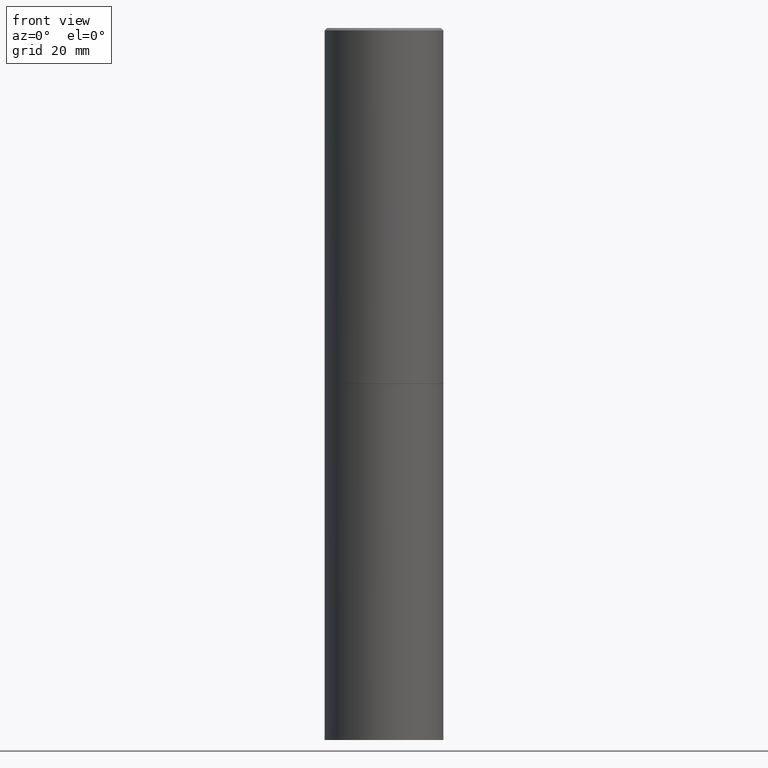
[diagram: clean part render]
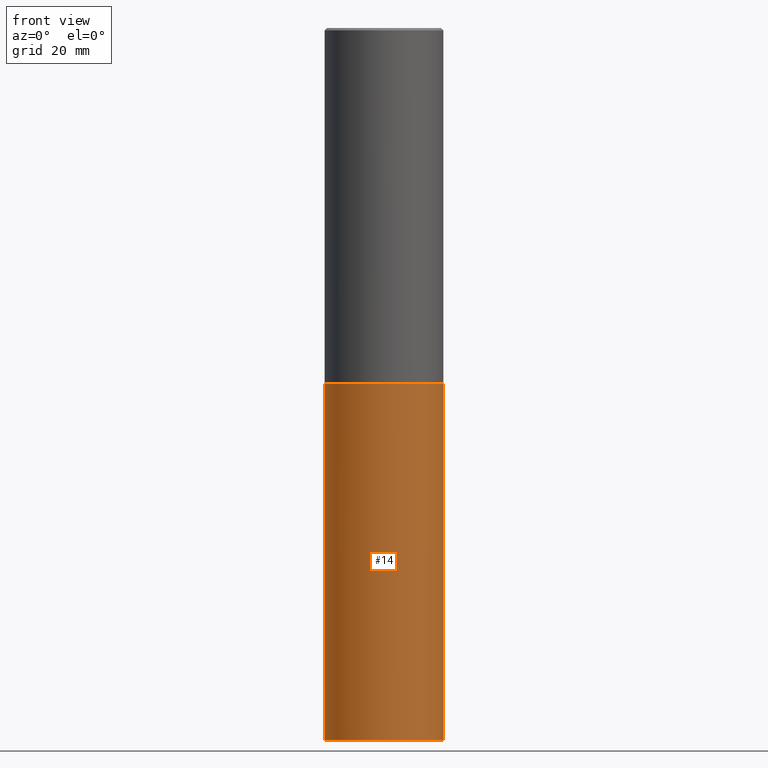
[diagram: same view with one face highlighted and labeled with its STEP entity id]
A machine part, front view. The second image highlights one B-rep face of the part: STEP entity #14.
In plain terms, the highlighted cylindrical surface (partial cylindrical patch) has radius 12.5006 mm, axis along (-0, 0, 1).
Its self-contained STEP definition (entity closure, byte-faithful):
#9 = CARTESIAN_POINT ( 'NONE',  ( 0.4921499999999999764, -1.374596203102545079E-14, -2.952700000000000102 ) ) ;
#14 = ADVANCED_FACE ( 'NONE', ( #87 ), #285, .T. ) ;
#21 = LINE ( 'NONE', #198, #239 ) ;
#31 = CIRCLE ( 'NONE', #231, 0.4921499999999999764 ) ;
#44 = CARTESIAN_POINT ( 'NONE',  ( -0.4921499999999999764, 3.496936074043332897E-15, -2.420853904668951509E-29 ) ) ;
#55 = VERTEX_POINT ( 'NONE', #151 ) ;
#62 = CARTESIAN_POINT ( 'NONE',  ( 1.444171603492632270E-28, -2.061894304653819197E-14, -5.905499999999999972 ) ) ;
#66 = DIRECTION ( 'NONE',  ( -2.445468806185136597E-29, 3.491481338843145583E-15, 1.000000000000000000 ) ) ;
#84 = ORIENTED_EDGE ( 'NONE', *, *, #284, .F. ) ;
#87 = FACE_OUTER_BOUND ( 'NONE', #221, .T. ) ;
#107 = VERTEX_POINT ( 'NONE', #340 ) ;
#120 = LINE ( 'NONE', #44, #310 ) ;
#133 = ORIENTED_EDGE ( 'NONE', *, *, #145, .T. ) ;
#140 = CIRCLE ( 'NONE', #324, 0.4921499999999999764 ) ;
#145 = EDGE_CURVE ( 'NONE', #55, #107, #140, .T. ) ;
#151 = CARTESIAN_POINT ( 'NONE',  ( -0.4921499999999999764, -1.196718392382684217E-14, -5.905499999999999972 ) ) ;
#158 = DIRECTION ( 'NONE',  ( 1.000000000000000000, -6.982962677686265922E-15, 0.000000000000000000 ) ) ;
#167 = ORIENTED_EDGE ( 'NONE', *, *, #242, .F. ) ;
#174 = DIRECTION ( 'NONE',  ( -2.445468806185136597E-29, 3.491481338843145583E-15, 1.000000000000000000 ) ) ;
#198 = CARTESIAN_POINT ( 'NONE',  ( 0.4921499999999999764, -3.436665081823295777E-15, 2.399810400207969603E-29 ) ) ;
#201 = CARTESIAN_POINT ( 'NONE',  ( 0.000000000000000000, 0.000000000000000000, 0.000000000000000000 ) ) ;
#221 = EDGE_LOOP ( 'NONE', ( #167, #133, #365, #84 ) ) ;
#231 = AXIS2_PLACEMENT_3D ( 'NONE', #345, #234, #158 ) ;
#233 = AXIS2_PLACEMENT_3D ( 'NONE', #201, #66, #341 ) ;
#234 = DIRECTION ( 'NONE',  ( -2.445468806185136597E-29, 3.491481338843145583E-15, 1.000000000000000000 ) ) ;
#235 = DIRECTION ( 'NONE',  ( -2.445468806185136877E-29, 3.491481338843145188E-15, 1.000000000000000000 ) ) ;
#239 = VECTOR ( 'NONE', #245, 39.37007874015748143 ) ;
#242 = EDGE_CURVE ( 'NONE', #55, #243, #120, .T. ) ;
#243 = VERTEX_POINT ( 'NONE', #291 ) ;
#245 = DIRECTION ( 'NONE',  ( -2.445468806185136877E-29, 3.491481338843145188E-15, 1.000000000000000000 ) ) ;
#255 = DIRECTION ( 'NONE',  ( 1.000000000000000000, -6.982962677686265922E-15, 0.000000000000000000 ) ) ;
#273 = VERTEX_POINT ( 'NONE', #9 ) ;
#284 = EDGE_CURVE ( 'NONE', #243, #273, #31, .T. ) ;
#285 = CYLINDRICAL_SURFACE ( 'NONE', #233, 0.4921499999999999764 ) ;
#291 = CARTESIAN_POINT ( 'NONE',  ( -0.4921499999999999764, -1.196718392382684217E-14, -2.952700000000000102 ) ) ;
#310 = VECTOR ( 'NONE', #235, 39.37007874015748143 ) ;
#324 = AXIS2_PLACEMENT_3D ( 'NONE', #62, #174, #255 ) ;
#340 = CARTESIAN_POINT ( 'NONE',  ( 0.4921499999999999764, -2.405560812836148932E-14, -5.905499999999999972 ) ) ;
#341 = DIRECTION ( 'NONE',  ( 1.000000000000000000, -6.982962677686265922E-15, 4.876176775795935793E-29 ) ) ;
#345 = CARTESIAN_POINT ( 'NONE',  ( 7.220735744022852519E-29, -1.030929694920215502E-14, -2.952700000000000102 ) ) ;
#357 = EDGE_CURVE ( 'NONE', #107, #273, #21, .T. ) ;
#365 = ORIENTED_EDGE ( 'NONE', *, *, #357, .T. ) ;